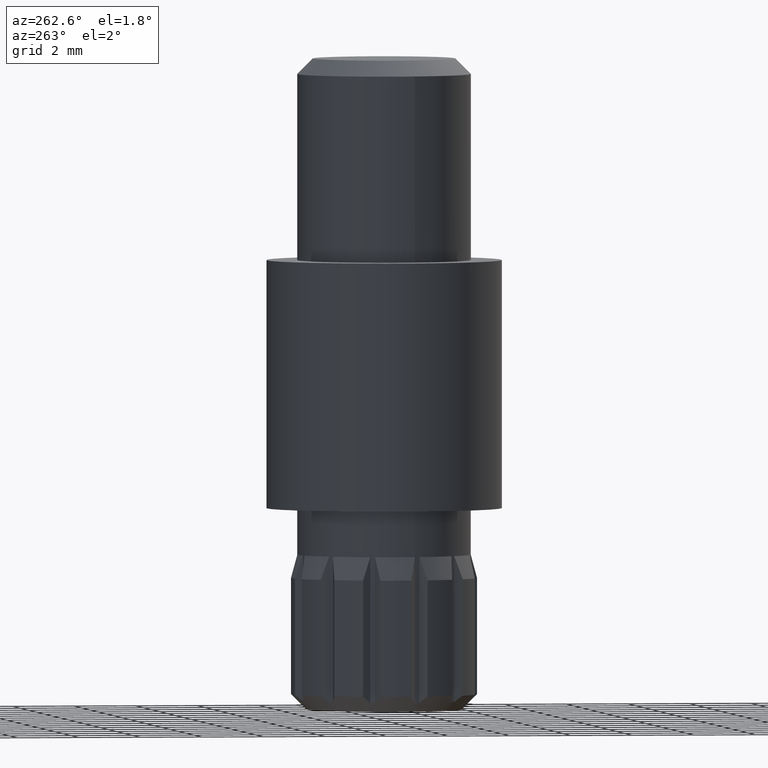
[diagram: clean part render]
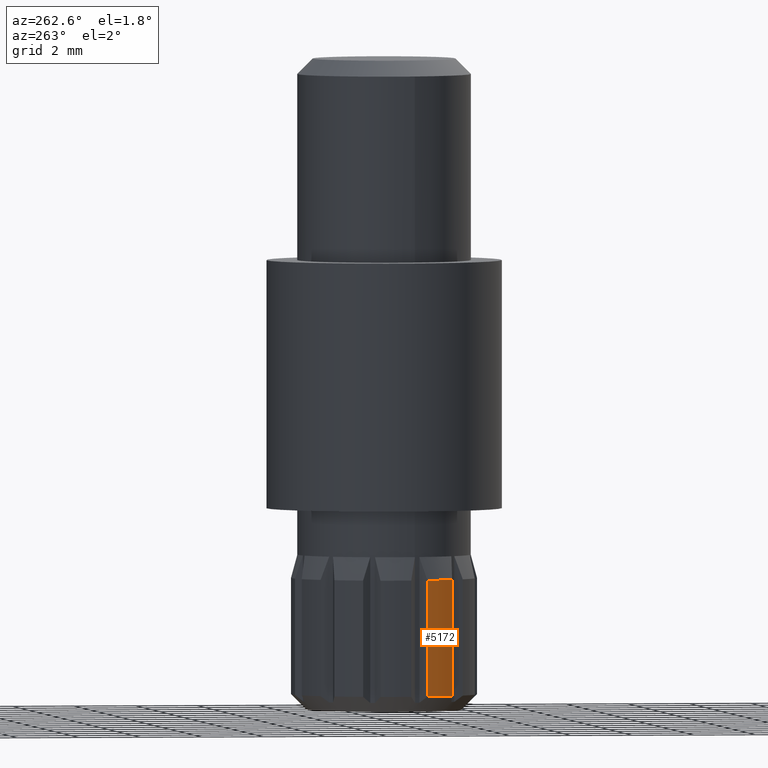
[diagram: same view with one face highlighted and labeled with its STEP entity id]
A machine part, auxiliary view. The second image highlights one B-rep face of the part: STEP entity #5172.
In plain terms, the highlighted cylindrical surface (partial cylindrical patch) has radius 3 mm, axis along (0, 0, -1).
Its self-contained STEP definition (entity closure, byte-faithful):
#64 = DIRECTION ( 'NONE',  ( 0.000000000000000000, 0.000000000000000000, -1.000000000000000000 ) ) ;
#250 = DIRECTION ( 'NONE',  ( -1.000000000000000000, 0.000000000000000000, 0.000000000000000000 ) ) ;
#290 = CARTESIAN_POINT ( 'NONE',  ( 0.000000000000000000, 0.000000000000000000, 4.250000000000000000 ) ) ;
#672 = AXIS2_PLACEMENT_3D ( 'NONE', #1098, #5718, #7698 ) ;
#954 = CARTESIAN_POINT ( 'NONE',  ( -2.311737691489917257, -1.912032647667102125, 0.4999999999999998890 ) ) ;
#1024 = EDGE_CURVE ( 'NONE', #5491, #10002, #12342, .T. ) ;
#1098 = CARTESIAN_POINT ( 'NONE',  ( 0.000000000000000000, 0.000000000000000000, 0.4999999999999998890 ) ) ;
#1116 = DIRECTION ( 'NONE',  ( 0.000000000000000000, 0.000000000000000000, -1.000000000000000000 ) ) ;
#1185 = CARTESIAN_POINT ( 'NONE',  ( 0.000000000000000000, 0.000000000000000000, 5.000000000000000000 ) ) ;
#2757 = CIRCLE ( 'NONE', #672, 3.000000000000000000 ) ;
#2881 = LINE ( 'NONE', #4817, #10894 ) ;
#3171 = DIRECTION ( 'NONE',  ( -0.000000000000000000, -0.000000000000000000, -1.000000000000000000 ) ) ;
#3245 = VERTEX_POINT ( 'NONE', #954 ) ;
#3811 = ORIENTED_EDGE ( 'NONE', *, *, #1024, .T. ) ;
#4095 = DIRECTION ( 'NONE',  ( -1.000000000000000000, 0.000000000000000000, 0.000000000000000000 ) ) ;
#4817 = CARTESIAN_POINT ( 'NONE',  ( -2.311737691489917701, -1.912032647667101903, 5.000000000000000000 ) ) ;
#4832 = FACE_OUTER_BOUND ( 'NONE', #7875, .T. ) ;
#4968 = DIRECTION ( 'NONE',  ( 0.000000000000000000, 0.000000000000000000, -1.000000000000000000 ) ) ;
#5172 = ADVANCED_FACE ( 'NONE', ( #4832 ), #9593, .T. ) ;
#5491 = VERTEX_POINT ( 'NONE', #7572 ) ;
#5718 = DIRECTION ( 'NONE',  ( -0.000000000000000000, -0.000000000000000000, -1.000000000000000000 ) ) ;
#6508 = VERTEX_POINT ( 'NONE', #8321 ) ;
#6683 = LINE ( 'NONE', #8412, #12229 ) ;
#7572 = CARTESIAN_POINT ( 'NONE',  ( -2.311737691489918589, -1.912032647667102125, 4.250000000000000000 ) ) ;
#7698 = DIRECTION ( 'NONE',  ( -1.000000000000000000, 0.000000000000000000, 0.000000000000000000 ) ) ;
#7835 = AXIS2_PLACEMENT_3D ( 'NONE', #1185, #4968, #250 ) ;
#7838 = ORIENTED_EDGE ( 'NONE', *, *, #9336, .F. ) ;
#7875 = EDGE_LOOP ( 'NONE', ( #3811, #11824, #8260, #7838 ) ) ;
#8260 = ORIENTED_EDGE ( 'NONE', *, *, #8988, .F. ) ;
#8321 = CARTESIAN_POINT ( 'NONE',  ( -2.811737691489909707, -1.046007243882658644, 0.4999999999999998890 ) ) ;
#8328 = CARTESIAN_POINT ( 'NONE',  ( -2.811737691489910596, -1.046007243882659088, 4.250000000000000000 ) ) ;
#8412 = CARTESIAN_POINT ( 'NONE',  ( -2.811737691489909707, -1.046007243882658644, 5.000000000000000000 ) ) ;
#8686 = AXIS2_PLACEMENT_3D ( 'NONE', #290, #3171, #4095 ) ;
#8988 = EDGE_CURVE ( 'NONE', #3245, #6508, #2757, .T. ) ;
#9336 = EDGE_CURVE ( 'NONE', #5491, #3245, #2881, .T. ) ;
#9593 = CYLINDRICAL_SURFACE ( 'NONE', #7835, 3.000000000000000444 ) ;
#10002 = VERTEX_POINT ( 'NONE', #8328 ) ;
#10876 = EDGE_CURVE ( 'NONE', #10002, #6508, #6683, .T. ) ;
#10894 = VECTOR ( 'NONE', #1116, 1000.000000000000000 ) ;
#11824 = ORIENTED_EDGE ( 'NONE', *, *, #10876, .T. ) ;
#12229 = VECTOR ( 'NONE', #64, 1000.000000000000000 ) ;
#12342 = CIRCLE ( 'NONE', #8686, 3.000000000000000888 ) ;